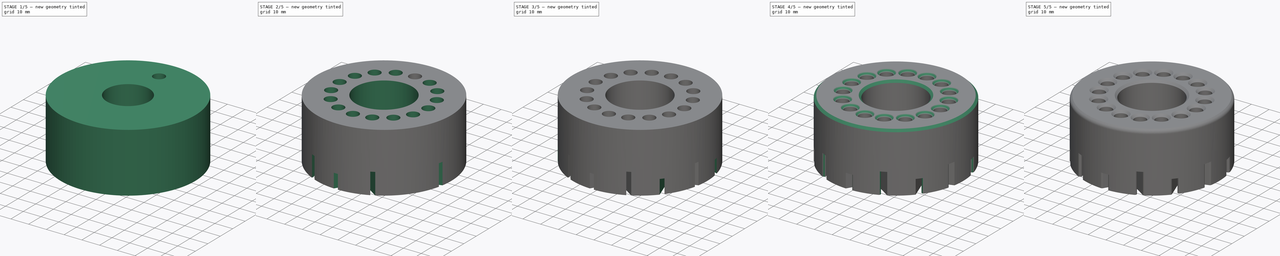
[diagram: build sequence overview — one tinted view per stage of 5, left to right]
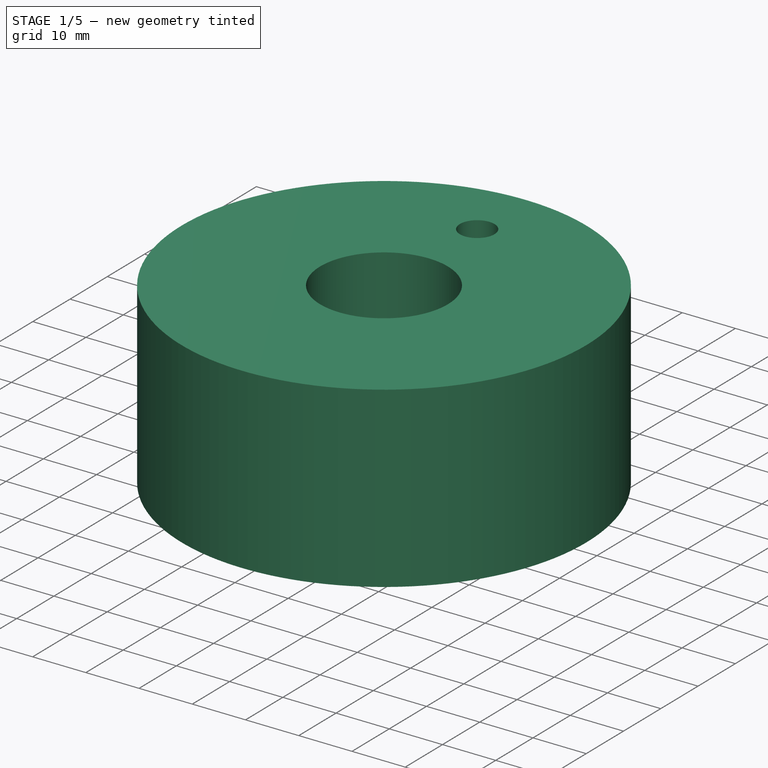
[diagram: stage 1 of 5 — iso view after this stage's code; geometry added in this stage tinted green]
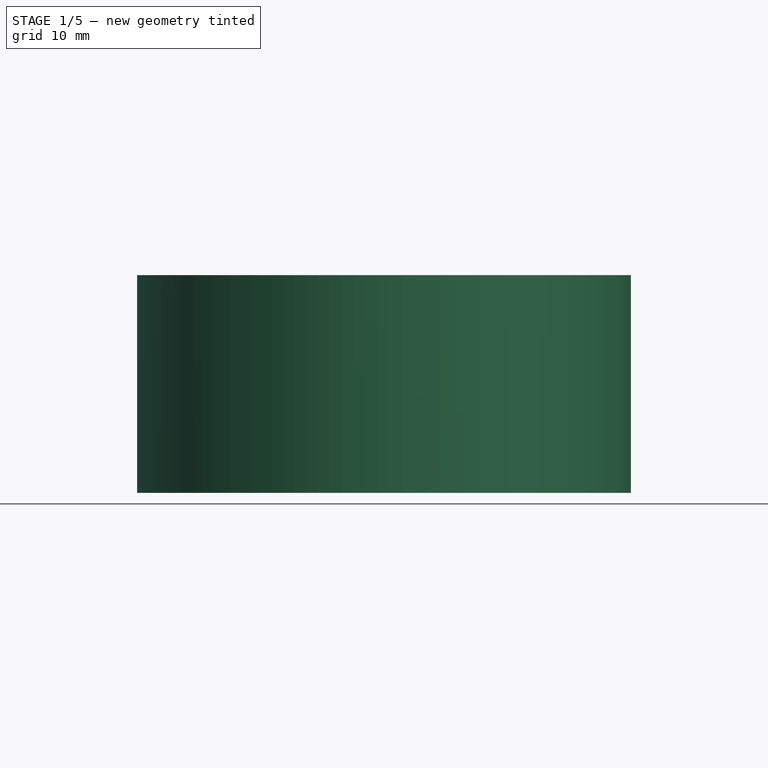
[diagram: stage 1 of 5 — front view after this stage's code; geometry added in this stage tinted green]
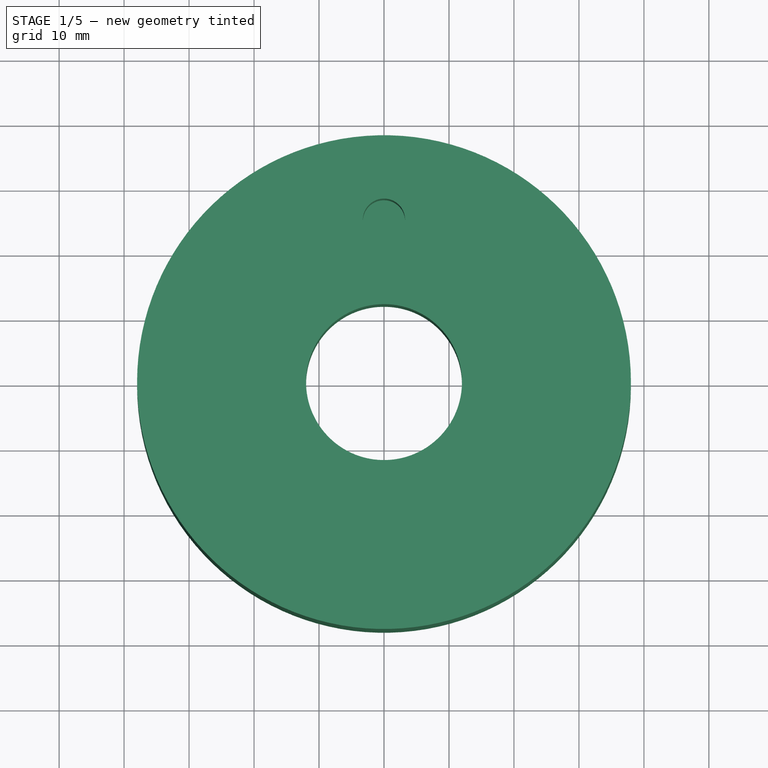
[diagram: stage 1 of 5 — top view after this stage's code; geometry added in this stage tinted green]
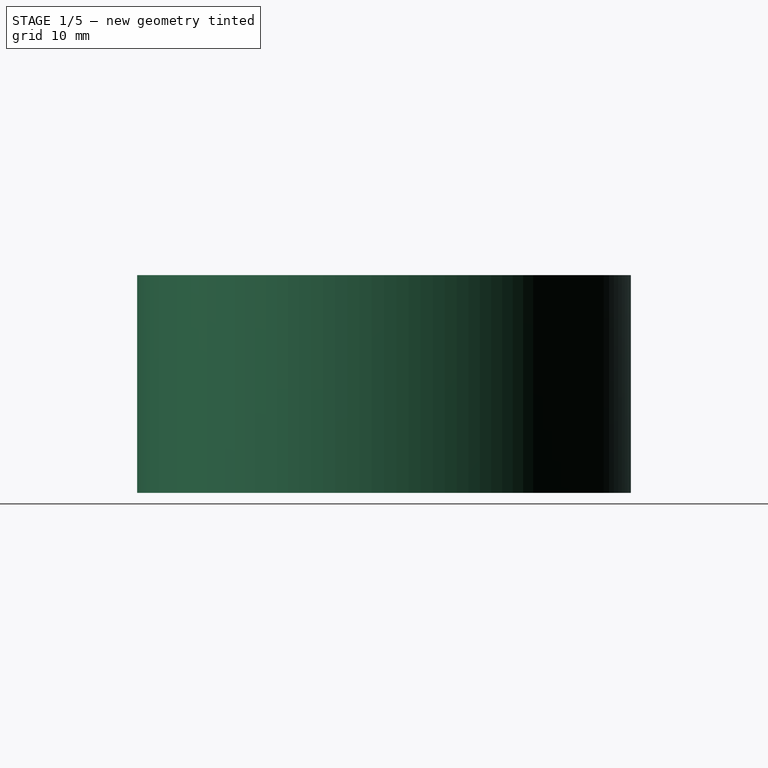
[diagram: stage 1 of 5 — right view after this stage's code; geometry added in this stage tinted green]
FCSTD DOCUMENT  (FreeCAD 0.16R)
Label: brake3
License: All rights reserved
LicenseURL: http://en.wikipedia.org/wiki/All_rights_reserved
objects: Sketcher::SketchObject×10, PartDesign::Pocket×9, PartDesign::PolarPattern×6, PartDesign::Fillet×5, PartDesign::Pad×1, PartDesign::Chamfer×1
note: 42 computed .brp shape members not serialized (recipe doc carries the construction recipe); baked Part::Feature solids carry a one-line shape summary decoded from their .brp

FEATURE [Sketcher::SketchObject] Sketch
  sketch-geometry (1):
    g0: Circle CenterX=0 CenterY=0 CenterZ=0 NormalX=0 NormalY=0 NormalZ=1 Radius=38
  constraints (2):
    c: Coincident(g0,g-1)
    c: Radius(g0) = 38
FEATURE [PartDesign::Pad] Pad
  Length = 33.5
  Length2 = 100
  Sketch = -> Sketch
  Type = 0
FEATURE [Sketcher::SketchObject] Sketch001
  Placement = pos=(0,0,0) rot=(1,0,0;3.14159rad)
  Support = -> Pad [Face2]
  sketch-geometry (1):
    g0: Circle CenterX=0 CenterY=0 CenterZ=0 NormalX=0 NormalY=0 NormalZ=1 Radius=12
  constraints (2):
    c: Coincident(g0,g-1)
    c: Radius(g0) = 12
FEATURE [PartDesign::Pocket] Pocket
  Length = 5
  Sketch = -> Sketch001
  Type = 1
FEATURE [Sketcher::SketchObject] Sketch002
  Placement = pos=(0,0,0) rot=(1,0,0;3.14159rad)
  Support = -> Pocket [Face2]
  sketch-geometry (1):
    g0: Circle CenterX=0 CenterY=0 CenterZ=0 NormalX=0 NormalY=0 NormalZ=1 Radius=27
  constraints (2):
    c: Coincident(g0,g-1)
    c: Radius(g0) = 27
FEATURE [PartDesign::Pocket] Pocket001
  Length = 10
  Sketch = -> Sketch002
  Type = 0
FEATURE [Sketcher::SketchObject] Sketch003
  Placement = pos=(0,0,33.5) rot=(0,0,1;0rad)
  Support = -> Pocket001 [Face3]
  sketch-geometry (1):
    g0: Circle CenterX=0 CenterY=25 CenterZ=0 NormalX=0 NormalY=0 NormalZ=1 Radius=3.25
  constraints (3):
    c: PointOnObject(g0,g-2)
    c: Distance(g-1,g0) = 25
    c: Radius(g0) = 3.25
FEATURE [PartDesign::Pocket] Pocket002
  Length = 15
  Sketch = -> Sketch003
  Type = 0
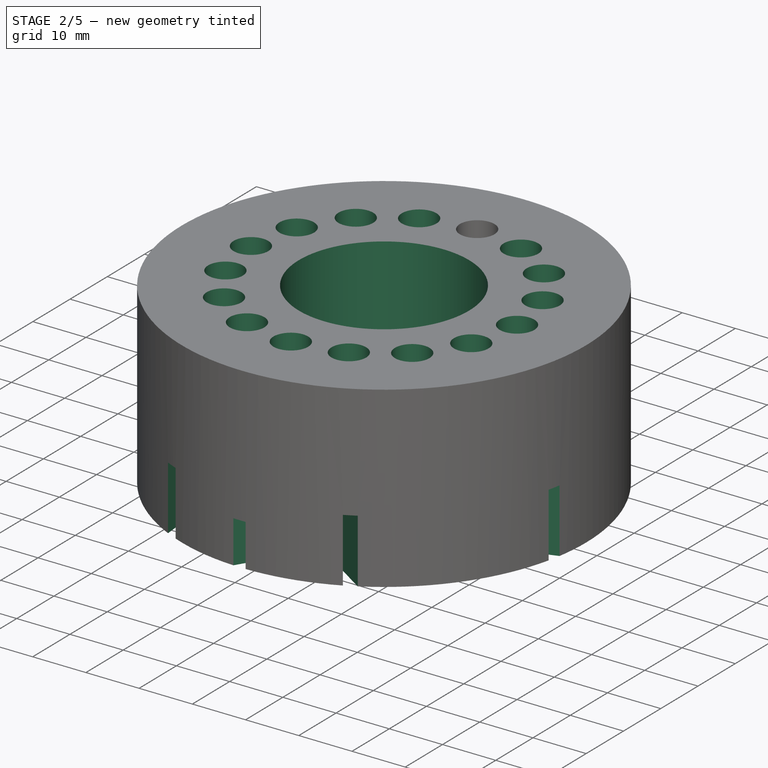
[diagram: stage 2 of 5 — iso view after this stage's code; geometry added in this stage tinted green]
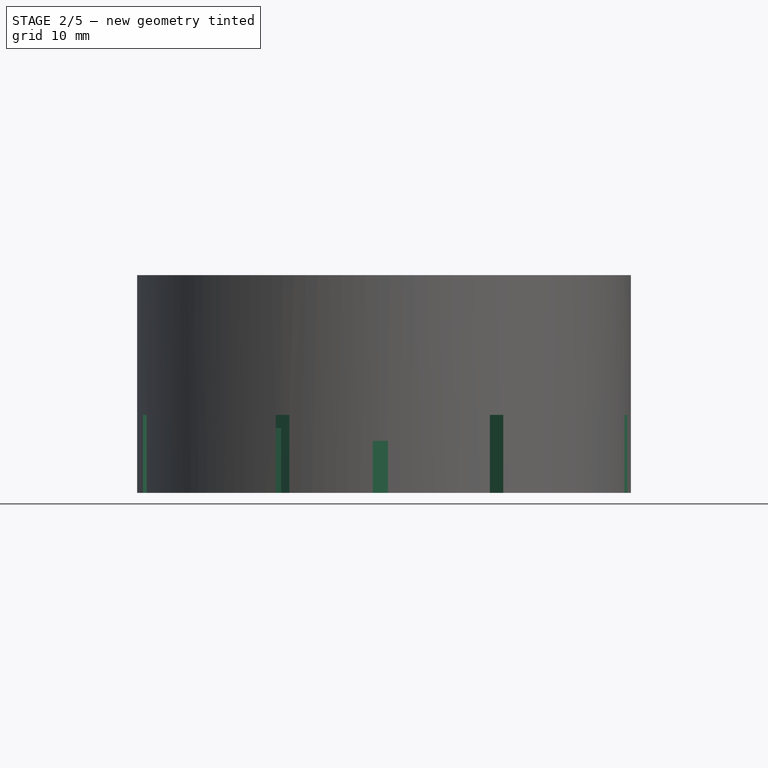
[diagram: stage 2 of 5 — front view after this stage's code; geometry added in this stage tinted green]
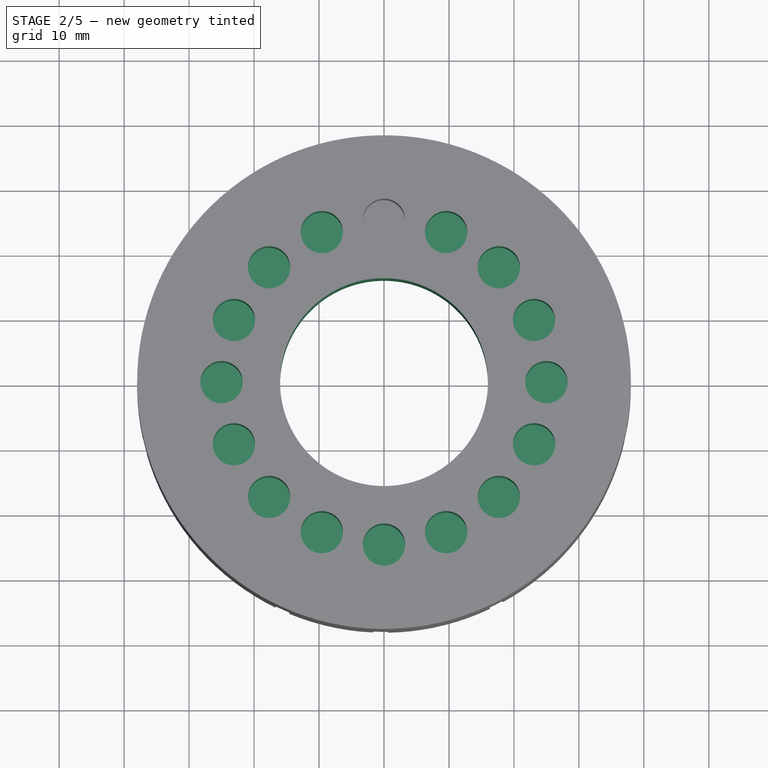
[diagram: stage 2 of 5 — top view after this stage's code; geometry added in this stage tinted green]
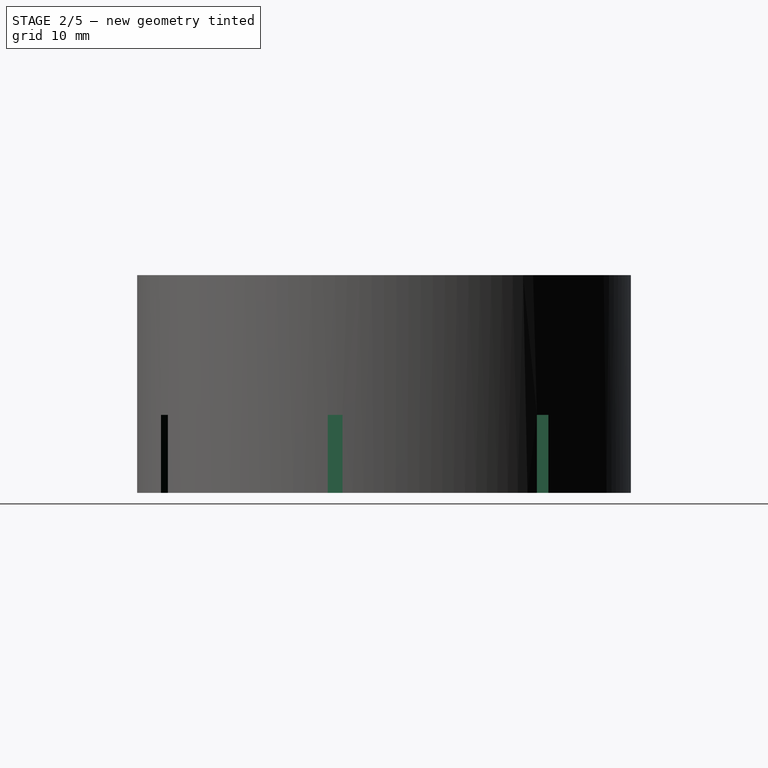
[diagram: stage 2 of 5 — right view after this stage's code; geometry added in this stage tinted green]
FEATURE [PartDesign::PolarPattern] PolarPattern
  Angle = 360
  Axis = -> Sketch003 [N_Axis]
  Occurrences = 16
  Originals = -> [Pocket002]
FEATURE [Sketcher::SketchObject] Sketch004
  Placement = pos=(0,0,33.5) rot=(0,0,1;0rad)
  Support = -> PolarPattern [Face3]
  sketch-geometry (1):
    g0: Circle CenterX=0 CenterY=0 CenterZ=0 NormalX=0 NormalY=0 NormalZ=1 Radius=16
  constraints (2):
    c: Coincident(g0,g-1)
    c: Radius(g0) = 16
FEATURE [PartDesign::Pocket] Pocket003
  Length = 24
  Sketch = -> Sketch004
  Type = 1
FEATURE [Sketcher::SketchObject] Sketch005
  Placement = pos=(0,0,0) rot=(1,0,0;3.14159rad)
  Support = -> Pocket003 [Face2]
  sketch-geometry (51):
    g0: Circle [constr] CenterX=0 CenterY=0 CenterZ=0 NormalX=0 NormalY=0 NormalZ=1 Radius=22.5
    g1: Circle [constr] CenterX=0 CenterY=0 CenterZ=0 NormalX=0 NormalY=0 NormalZ=1 Radius=196
    g2: GeomPoint [constr] X=0 Y=22.5 Z=0
    g3: LineSegment [constr] StartX=0 StartY=0 StartZ=0 EndX=-17.5842 EndY=14.0373 EndZ=0
    g4: LineSegment [constr] StartX=0 StartY=0 StartZ=0 EndX=0 EndY=22.5 EndZ=0
    g5: LineSegment [constr] StartX=0 StartY=0 StartZ=0 EndX=21.9321 EndY=5.02313 EndZ=0
    g6: LineSegment [constr] StartX=0 StartY=0 StartZ=0 EndX=17.6087 EndY=-14.0066 EndZ=0
    g7: LineSegment [constr] StartX=0 StartY=0 StartZ=0 EndX=0.0392699 EndY=-22.5 EndZ=0
    g8: LineSegment [constr] StartX=0 StartY=0 StartZ=0 EndX=-17.5597 EndY=-14.068 EndZ=0
    g9: LineSegment [constr] StartX=0 StartY=0 StartZ=0 EndX=-21.9233 EndY=-5.0614 EndZ=0
    g10: LineSegment [constr] StartX=0 StartY=0 StartZ=0 EndX=-21.9321 EndY=5.02313 EndZ=0
    g11: LineSegment [constr] StartX=0 StartY=0 StartZ=0 EndX=-9.75733 EndY=20.2742 EndZ=0
    g12: LineSegment [constr] StartX=0 StartY=0 StartZ=0 EndX=21.9409 EndY=-4.98484 EndZ=0
    g13: LineSegment [constr] StartX=0 StartY=0 StartZ=0 EndX=9.7927 EndY=-20.2572 EndZ=0
    g14: LineSegment [constr] StartX=0 StartY=0 StartZ=0 EndX=-9.72193 EndY=-20.2912 EndZ=0
    g15: LineSegment [constr] StartX=0 StartY=0 StartZ=0 EndX=9.75733 EndY=20.2742 EndZ=0
    g16: LineSegment [constr] StartX=0 StartY=0 StartZ=0 EndX=17.5842 EndY=14.0373 EndZ=0
    g17: LineSegment [constr] StartX=9.75733 StartY=20.2742 StartZ=0 EndX=-85.1953 EndY=176.516 EndZ=0
    g18: LineSegment [constr] StartX=21.9321 StartY=5.02313 StartZ=0 EndX=84.8871 EndY=176.664 EndZ=0
    g19: LineSegment [constr] StartX=17.6087 StartY=-14.0066 StartZ=0 EndX=191.048 EndY=43.7808 EndZ=0
    g20: LineSegment [constr] StartX=-9.75733 StartY=20.2742 StartZ=0 EndX=-191.124 EndY=43.4473 EndZ=0
    g21: LineSegment [constr] StartX=-21.9321 StartY=5.02313 StartZ=0 EndX=-153.132 EndY=-122.338 EndZ=0
    g22: LineSegment [constr] StartX=-17.5597 StartY=-14.068 StartZ=0 EndX=0.171042 EndY=-196 EndZ=0
    g23: LineSegment [constr] StartX=0.0392699 StartY=-22.5 StartZ=0 EndX=153.346 EndY=-122.07 EndZ=0
    g24: LineSegment [constr] StartX=17.5842 StartY=14.0373 StartZ=0 EndX=191.124 EndY=-43.4473 EndZ=0
    g25: LineSegment [constr] StartX=21.9409 StartY=-4.98484 StartZ=0 EndX=85.1953 EndY=-176.516 EndZ=0
    g26: LineSegment [constr] StartX=9.7927 StartY=-20.2572 StartZ=0 EndX=-84.8871 EndY=-176.664 EndZ=0
    g27: LineSegment [constr] StartX=-9.72193 StartY=-20.2912 StartZ=0 EndX=-191.048 EndY=-43.7808 EndZ=0
    g28: LineSegment [constr] StartX=-21.9233 StartY=-5.0614 StartZ=0 EndX=-153.346 EndY=122.07 EndZ=0
    g29: LineSegment [constr] StartX=-17.5842 StartY=14.0373 StartZ=0 EndX=-0.171042 EndY=196 EndZ=0
    g30: LineSegment [constr] StartX=0 StartY=22.5 StartZ=0 EndX=153.132 EndY=122.338 EndZ=0
    g31: LineSegment [constr] StartX=-85.1953 StartY=176.516 StartZ=0 EndX=-0.171042 EndY=196 EndZ=0
    g32: LineSegment [constr] StartX=-0.171042 StartY=196 StartZ=0 EndX=84.8871 EndY=176.664 EndZ=0
    g33: LineSegment [constr] StartX=84.8871 StartY=176.664 StartZ=0 EndX=153.132 EndY=122.338 EndZ=0
    g34: LineSegment [constr] StartX=153.132 StartY=122.338 StartZ=0 EndX=191.048 EndY=43.7808 EndZ=0
    g35: LineSegment [constr] StartX=191.048 StartY=43.7808 StartZ=0 EndX=191.124 EndY=-43.4473 EndZ=0
    g36: LineSegment [constr] StartX=191.124 StartY=-43.4473 StartZ=0 EndX=153.346 EndY=-122.07 EndZ=0
    g37: LineSegment [constr] StartX=153.346 StartY=-122.07 StartZ=0 EndX=85.1953 EndY=-176.516 EndZ=0
    g38: LineSegment [constr] StartX=85.1953 StartY=-176.516 StartZ=0 EndX=0.171042 EndY=-196 EndZ=0
    g39: LineSegment [constr] StartX=0.171042 StartY=-196 StartZ=0 EndX=-84.8871 EndY=-176.664 EndZ=0
    g40: LineSegment [constr] StartX=-84.8871 StartY=-176.664 StartZ=0 EndX=-153.132 EndY=-122.338 EndZ=0
    g41: LineSegment [constr] StartX=-153.132 StartY=-122.338 StartZ=0 EndX=-191.048 EndY=-43.7808 EndZ=0
    g42: LineSegment [constr] StartX=-191.048 StartY=-43.7808 StartZ=0 EndX=-191.124 EndY=43.4473 EndZ=0
    g43: LineSegment [constr] StartX=-191.124 StartY=43.4473 StartZ=0 EndX=-153.346 EndY=122.07 EndZ=0
    g44: LineSegment [constr] StartX=-153.346 StartY=122.07 StartZ=0 EndX=-85.1953 EndY=176.516 EndZ=0
    g45: LineSegment StartX=31.7281 StartY=41.992 StartZ=0 EndX=0.336726 EndY=21.5258 EndZ=0
    g46: LineSegment StartX=-0.75557 StartY=23.2012 StartZ=0 EndX=30.6358 EndY=43.6674 EndZ=0
    g47: LineSegment StartX=-0.974226 StartY=22.1633 StartZ=0 EndX=-0.701152 EndY=21.7444 EndZ=0
    g48: LineSegment StartX=30.6358 StartY=43.6674 StartZ=0 EndX=31.7281 EndY=41.992 EndZ=0
    g49: ArcOfCircle CenterX=-0.345959 CenterY=22.5729 CenterZ=0 NormalX=0 NormalY=0 NormalZ=1 Radius=0.75 StartAngle=2.14856 EndAngle=3.71935
    g50: ArcOfCircle CenterX=-0.0728851 CenterY=22.154 CenterZ=0 NormalX=0 NormalY=0 NormalZ=1 Radius=0.75 StartAngle=3.71935 EndAngle=5.29015
  constraints (133):
    c: Coincident(g0,g-1)
    c: Radius(g0) = 22.5
    c: Coincident(g1,g-1)
    c: Radius(g1) = 196
    c: Coincident(g3,g-1)
    c: Coincident(g4,g-1)
    c: Coincident(g5,g-1)
    c: Coincident(g6,g-1)
    c: Coincident(g7,g-1)
    c: Coincident(g9,g-1)
    c: Coincident(g10,g-1)
    c: Coincident(g12,g-1)
    c: Coincident(g13,g-1)
    c: Coincident(g14,g-1)
    c: Coincident(g15,g11)
    c: PointOnObject(g16,g5)
    c: Coincident(g8,g-1)
    c: Coincident(g11,g-1)
    c: Coincident(g16,g-1)
    c: Angle(g3,g10) = 0.44855
    c: Angle(g11,g3) = 0.44855
    c: Angle(g4,g11) = 0.44855
    c: Angle(g15,g4) = 0.44855
    c: Angle(g16,g15) = 0.44855
    c: Angle(g5,g16) = 0.44855
    c: Angle(g12,g5) = 0.44855
    c: Angle(g6,g12) = 0.44855
    c: Angle(g13,g6) = 0.44855
    c: Angle(g7,g13) = 0.44855
    c: Angle(g14,g7) = 0.44855
    c: Angle(g8,g14) = 0.44855
    c: Angle(g9,g8) = 0.44855
    c: PointOnObject(g4,g-2)
    c: PointOnObject(g4,g0)
    c: PointOnObject(g5,g0)
    c: PointOnObject(g16,g0)
    c: PointOnObject(g12,g0)
    c: PointOnObject(g6,g0)
    c: PointOnObject(g13,g0)
    c: PointOnObject(g7,g0)
    c: PointOnObject(g14,g0)
    c: PointOnObject(g8,g0)
    c: PointOnObject(g3,g0)
    c: PointOnObject(g11,g0)
    c: PointOnObject(g15,g0)
    c: PointOnObject(g9,g0)
    c: Coincident(g17,g15)
    c: PointOnObject(g17,g1)
    c: Coincident(g18,g5)
    c: PointOnObject(g18,g1)
    c: Coincident(g19,g6)
    c: PointOnObject(g19,g1)
    c: Coincident(g20,g11)
    c: PointOnObject(g20,g1)
    c: PointOnObject(g21,g1)
    c: Coincident(g22,g8)
    c: PointOnObject(g22,g1)
    c: Coincident(g23,g7)
    c: PointOnObject(g23,g1)
    c: Coincident(g24,g16)
    c: PointOnObject(g24,g1)
    c: Coincident(g25,g12)
    c: PointOnObject(g25,g1)
    c: Coincident(g26,g13)
    c: PointOnObject(g26,g1)
    c: Coincident(g27,g14)
    c: PointOnObject(g27,g1)
    c: Coincident(g28,g9)
    c: PointOnObject(g28,g1)
    c: Coincident(g29,g3)
    c: PointOnObject(g29,g1)
    c: Coincident(g31,g17)
    c: Coincident(g31,g29)
    c: Coincident(g29,g32)
    c: Coincident(g32,g18)
    c: Coincident(g32,g33)
    c: Coincident(g33,g30)
    c: Coincident(g33,g34)
    c: Coincident(g34,g19)
    c: Coincident(g34,g35)
    c: Coincident(g35,g24)
    c: Coincident(g35,g36)
    c: Coincident(g36,g23)
    c: Coincident(g36,g37)
    c: Coincident(g37,g25)
    c: Coincident(g37,g38)
    c: Coincident(g38,g22)
    c: Coincident(g38,g39)
    c: Coincident(g39,g26)
    c: Coincident(g39,g40)
    c: Coincident(g40,g21)
    c: Coincident(g40,g41)
    c: Coincident(g41,g27)
    c: Coincident(g41,g42)
    c: Coincident(g42,g20)
    c: Coincident(g42,g43)
    c: Coincident(g43,g28)
    c: Coincident(g43,g44)
    c: Coincident(g44,g17)
    c: PointOnObject(g30,g1)
    c: Equal(g35,g34)
    c: Equal(g34,g33)
    c: Equal(g33,g32)
    c: Equal(g32,g31)
    c: Equal(g31,g44)
    c: Equal(g44,g43)
    c: Equal(g43,g42)
    c: Equal(g42,g41)
    c: Equal(g41,g40)
    c: Equal(g40,g39)
    c: Equal(g39,g38)
    c: Equal(g38,g37)
    c: Equal(g37,g36)
    c: Equal(g24,g19)
    c: Coincident(g30,g2)
    c: Coincident(g2,g4)
    c: Coincident(g21,g10)
    c: PointOnObject(g10,g0)
    c: Coincident(g48,g46)
    c: Coincident(g48,g45)
    c: Parallel(g45,g46)
    c: Parallel(g30,g45)
    c: Symmetric(g45,g46,g30)
    c: Distance(g48) = 2
    c: Perpendicular(g45,g47)
    c: Distance(g2,g47) = 1
    c: Tangent(g46,g49) = 1.5708
    c: Tangent(g47,g49) = -1.5708
    c: Tangent(g45,g50) = 1.5708
    c: Tangent(g47,g50) = -1.5708
    c: Distance(g47) = 0.5
    c: Symmetric(g45,g46,g30)
    c: Distance(g45) = 37.4738
FEATURE [PartDesign::Pocket] Pocket004
  Length = 12
  Sketch = -> Sketch005
  Type = 0
FEATURE [PartDesign::PolarPattern] PolarPattern001
  Angle = 360
  Axis = -> Sketch005 [N_Axis]
  Occurrences = 7
  Originals = -> [Pocket004]
FEATURE [Sketcher::SketchObject] Sketch006
  Placement = pos=(0,0,0) rot=(1,0,0;3.14159rad)
  Support = -> PolarPattern001 [Face19]
  sketch-geometry (49):
    g0: Circle [constr] CenterX=0 CenterY=0 CenterZ=0 NormalX=0 NormalY=0 NormalZ=1 Radius=23
    g1: Circle [constr] CenterX=0 CenterY=0 CenterZ=0 NormalX=0 NormalY=0 NormalZ=1 Radius=196
    g2: GeomPoint [constr] X=0 Y=23 Z=0
    g3: LineSegment [constr] StartX=0 StartY=0 StartZ=0 EndX=-17.975 EndY=14.3492 EndZ=0
    g4: LineSegment [constr] StartX=0 StartY=0 StartZ=0 EndX=0 EndY=23 EndZ=0
    g5: LineSegment [constr] StartX=0 StartY=0 StartZ=0 EndX=22.4195 EndY=5.13475 EndZ=0
    g6: LineSegment [constr] StartX=0 StartY=0 StartZ=0 EndX=18 EndY=-14.3178 EndZ=0
    g7: LineSegment [constr] StartX=0 StartY=0 StartZ=0 EndX=0.0401426 EndY=-23 EndZ=0
    g8: LineSegment [constr] StartX=0 StartY=0 StartZ=0 EndX=-17.9499 EndY=-14.3806 EndZ=0
    g9: LineSegment [constr] StartX=0 StartY=0 StartZ=0 EndX=-22.4105 EndY=-5.17387 EndZ=0
    g10: LineSegment [constr] StartX=0 StartY=0 StartZ=0 EndX=-22.4195 EndY=5.13475 EndZ=0
    g11: LineSegment [constr] StartX=0 StartY=0 StartZ=0 EndX=-9.97416 EndY=20.7248 EndZ=0
    g12: LineSegment [constr] StartX=0 StartY=0 StartZ=0 EndX=22.4284 EndY=-5.09562 EndZ=0
    g13: LineSegment [constr] StartX=0 StartY=0 StartZ=0 EndX=10.0103 EndY=-20.7073 EndZ=0
    g14: LineSegment [constr] StartX=0 StartY=0 StartZ=0 EndX=-9.93797 EndY=-20.7421 EndZ=0
    g15: LineSegment [constr] StartX=0 StartY=0 StartZ=0 EndX=9.97416 EndY=20.7248 EndZ=0
    g16: LineSegment [constr] StartX=0 StartY=0 StartZ=0 EndX=17.975 EndY=14.3492 EndZ=0
    g17: LineSegment [constr] StartX=9.97416 StartY=20.7248 StartZ=0 EndX=-85.1953 EndY=176.516 EndZ=0
    g18: LineSegment [constr] StartX=22.4195 StartY=5.13475 StartZ=0 EndX=84.8871 EndY=176.664 EndZ=0
    g19: LineSegment [constr] StartX=18 StartY=-14.3178 StartZ=0 EndX=191.048 EndY=43.7808 EndZ=0
    g20: LineSegment [constr] StartX=-9.97416 StartY=20.7248 StartZ=0 EndX=-191.124 EndY=43.4473 EndZ=0
    g21: LineSegment [constr] StartX=-22.4195 StartY=5.13475 StartZ=0 EndX=-153.132 EndY=-122.338 EndZ=0
    g22: LineSegment [constr] StartX=-17.9499 StartY=-14.3806 StartZ=0 EndX=0.171042 EndY=-196 EndZ=0
    g23: LineSegment [constr] StartX=0.0401426 StartY=-23 StartZ=0 EndX=153.346 EndY=-122.07 EndZ=0
    g24: LineSegment [constr] StartX=17.975 StartY=14.3492 StartZ=0 EndX=191.124 EndY=-43.4473 EndZ=0
    g25: LineSegment [constr] StartX=22.4284 StartY=-5.09562 StartZ=0 EndX=85.1953 EndY=-176.516 EndZ=0
    g26: LineSegment [constr] StartX=10.0103 StartY=-20.7073 StartZ=0 EndX=-84.8871 EndY=-176.664 EndZ=0
    g27: LineSegment [constr] StartX=-9.93797 StartY=-20.7421 StartZ=0 EndX=-191.048 EndY=-43.7808 EndZ=0
    g28: LineSegment [constr] StartX=-22.4105 StartY=-5.17387 StartZ=0 EndX=-153.346 EndY=122.07 EndZ=0
    g29: LineSegment [constr] StartX=-17.975 StartY=14.3492 StartZ=0 EndX=-0.171042 EndY=196 EndZ=0
    g30: LineSegment [constr] StartX=0 StartY=23 StartZ=0 EndX=153.132 EndY=122.338 EndZ=0
    g31: LineSegment [constr] StartX=-85.1953 StartY=176.516 StartZ=0 EndX=-0.171042 EndY=196 EndZ=0
    g32: LineSegment [constr] StartX=-0.171042 StartY=196 StartZ=0 EndX=84.8871 EndY=176.664 EndZ=0
    g33: LineSegment [constr] StartX=84.8871 StartY=176.664 StartZ=0 EndX=153.132 EndY=122.338 EndZ=0
    g34: LineSegment [constr] StartX=153.132 StartY=122.338 StartZ=0 EndX=191.048 EndY=43.7808 EndZ=0
    g35: LineSegment [constr] StartX=191.048 StartY=43.7808 StartZ=0 EndX=191.124 EndY=-43.4473 EndZ=0
    g36: LineSegment [constr] StartX=191.124 StartY=-43.4473 StartZ=0 EndX=153.346 EndY=-122.07 EndZ=0
    g37: LineSegment [constr] StartX=153.346 StartY=-122.07 StartZ=0 EndX=85.1953 EndY=-176.516 EndZ=0
    g38: LineSegment [constr] StartX=85.1953 StartY=-176.516 StartZ=0 EndX=0.171042 EndY=-196 EndZ=0
    g39: LineSegment [constr] StartX=0.171042 StartY=-196 StartZ=0 EndX=-84.8871 EndY=-176.664 EndZ=0
    g40: LineSegment [constr] StartX=-84.8871 StartY=-176.664 StartZ=0 EndX=-153.132 EndY=-122.338 EndZ=0
    g41: LineSegment [constr] StartX=-153.132 StartY=-122.338 StartZ=0 EndX=-191.048 EndY=-43.7808 EndZ=0
    g42: LineSegment [constr] StartX=-191.048 StartY=-43.7808 StartZ=0 EndX=-191.124 EndY=43.4473 EndZ=0
    g43: LineSegment [constr] StartX=-191.124 StartY=43.4473 StartZ=0 EndX=-153.346 EndY=122.07 EndZ=0
    g44: LineSegment [constr] StartX=-153.346 StartY=122.07 StartZ=0 EndX=-85.1953 EndY=176.516 EndZ=0
    g45: LineSegment StartX=11.8701 StartY=19.5393 StartZ=0 EndX=-8.9821 EndY=53.6741 EndZ=0
    g46: LineSegment StartX=-8.9821 StartY=53.6741 StartZ=0 EndX=-10.6888 EndY=52.6315 EndZ=0
    g47: LineSegment StartX=-10.6888 StartY=52.6315 StartZ=0 EndX=10.1634 EndY=18.4967 EndZ=0
    g48: LineSegment StartX=10.1634 StartY=18.4967 StartZ=0 EndX=11.8701 EndY=19.5393 EndZ=0
  constraints (130):
    c: Coincident(g0,g-1)
    c: Radius(g0) = 23
    c: Coincident(g1,g-1)
    c: Radius(g1) = 196
    c: Coincident(g3,g-1)
    c: Coincident(g4,g-1)
    c: Coincident(g5,g-1)
    c: Coincident(g6,g-1)
    c: Coincident(g7,g-1)
    c: Coincident(g9,g-1)
    c: Coincident(g10,g-1)
    c: Coincident(g12,g-1)
    c: Coincident(g13,g-1)
    c: Coincident(g14,g-1)
    c: Coincident(g15,g11)
    c: PointOnObject(g16,g5)
    c: Coincident(g8,g-1)
    c: Coincident(g11,g-1)
    c: Coincident(g16,g-1)
    c: Angle(g3,g10) = 0.44855
    c: Angle(g11,g3) = 0.44855
    c: Angle(g4,g11) = 0.44855
    c: Angle(g15,g4) = 0.44855
    c: Angle(g16,g15) = 0.44855
    c: Angle(g5,g16) = 0.44855
    c: Angle(g12,g5) = 0.44855
    c: Angle(g6,g12) = 0.44855
    c: Angle(g13,g6) = 0.44855
    c: Angle(g7,g13) = 0.44855
    c: Angle(g14,g7) = 0.44855
    c: Angle(g8,g14) = 0.44855
    c: Angle(g9,g8) = 0.44855
    c: PointOnObject(g4,g-2)
    c: PointOnObject(g4,g0)
    c: PointOnObject(g5,g0)
    c: PointOnObject(g16,g0)
    c: PointOnObject(g12,g0)
    c: PointOnObject(g6,g0)
    c: PointOnObject(g13,g0)
    c: PointOnObject(g7,g0)
    c: PointOnObject(g14,g0)
    c: PointOnObject(g8,g0)
    c: PointOnObject(g3,g0)
    c: PointOnObject(g11,g0)
    c: PointOnObject(g15,g0)
    c: PointOnObject(g9,g0)
    c: Coincident(g17,g15)
    c: PointOnObject(g17,g1)
    c: Coincident(g18,g5)
    c: PointOnObject(g18,g1)
    c: Coincident(g19,g6)
    c: PointOnObject(g19,g1)
    c: Coincident(g20,g11)
    c: PointOnObject(g20,g1)
    c: PointOnObject(g21,g1)
    c: Coincident(g22,g8)
    c: PointOnObject(g22,g1)
    c: Coincident(g23,g7)
    c: PointOnObject(g23,g1)
    c: Coincident(g24,g16)
    c: PointOnObject(g24,g1)
    c: Coincident(g25,g12)
    c: PointOnObject(g25,g1)
    c: Coincident(g26,g13)
    c: PointOnObject(g26,g1)
    c: Coincident(g27,g14)
    c: PointOnObject(g27,g1)
    c: Coincident(g28,g9)
    c: PointOnObject(g28,g1)
    c: Coincident(g29,g3)
    c: PointOnObject(g29,g1)
    c: Coincident(g31,g17)
    c: Coincident(g31,g29)
    c: Coincident(g29,g32)
    c: Coincident(g32,g18)
    c: Coincident(g32,g33)
    c: Coincident(g33,g30)
    c: Coincident(g33,g34)
    c: Coincident(g34,g19)
    c: Coincident(g34,g35)
    c: Coincident(g35,g24)
    c: Coincident(g35,g36)
    c: Coincident(g36,g23)
    c: Coincident(g36,g37)
    c: Coincident(g37,g25)
    c: Coincident(g37,g38)
    c: Coincident(g38,g22)
    c: Coincident(g38,g39)
    c: Coincident(g39,g26)
    c: Coincident(g39,g40)
    c: Coincident(g40,g21)
    c: Coincident(g40,g41)
    c: Coincident(g41,g27)
    c: Coincident(g41,g42)
    c: Coincident(g42,g20)
    c: Coincident(g42,g43)
    c: Coincident(g43,g28)
    c: Coincident(g43,g44)
    c: Coincident(g44,g17)
    c: PointOnObject(g30,g1)
    c: Equal(g35,g34)
    c: Equal(g34,g33)
    c: Equal(g33,g32)
    c: Equal(g32,g31)
    c: Equal(g31,g44)
    c: Equal(g44,g43)
    c: Equal(g43,g42)
    c: Equal(g42,g41)
    c: Equal(g41,g40)
    c: Equal(g40,g39)
    c: Equal(g39,g38)
    c: Equal(g38,g37)
    c: Equal(g37,g36)
    c: Equal(g24,g19)
    c: Coincident(g30,g2)
    c: Coincident(g2,g4)
    c: Coincident(g21,g10)
    c: PointOnObject(g10,g0)
    c: Coincident(g45,g46)
    c: Coincident(g46,g47)
    c: Coincident(g47,g48)
    c: Coincident(g48,g45)
    c: Perpendicular(g45,g46)
    c: Parallel(g17,g45)
    c: Parallel(g47,g45)
    c: Symmetric(g45,g46,g17)
    c: Distance(g46) = 2
    c: Distance(g47) = 40
    c: Perpendicular(g47,g48)
    c: Distance(g15,g48) = 2
FEATURE [PartDesign::Pocket] Pocket005
  Length = 8
  Sketch = -> Sketch006
  Type = 0
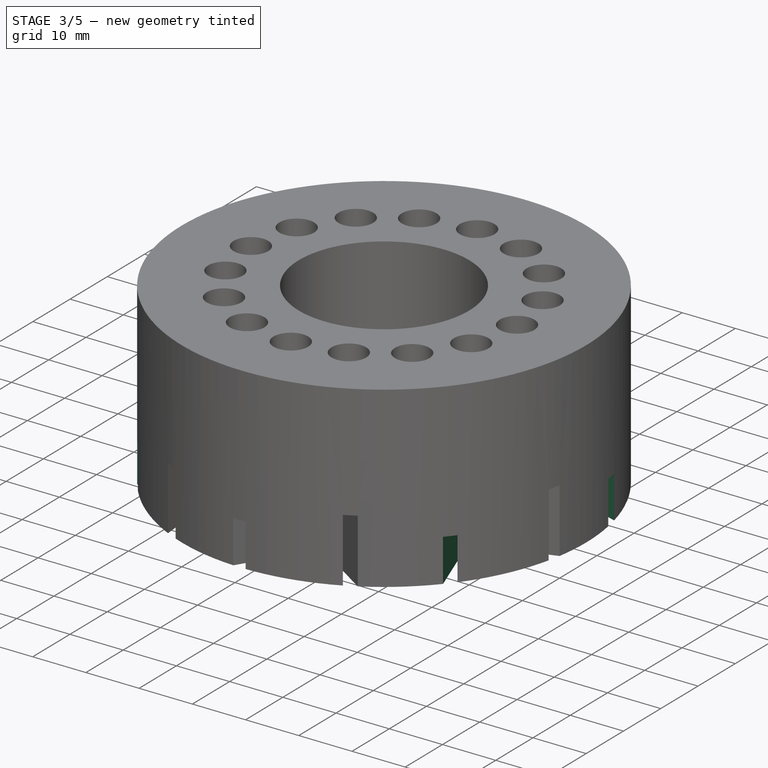
[diagram: stage 3 of 5 — iso view after this stage's code; geometry added in this stage tinted green]
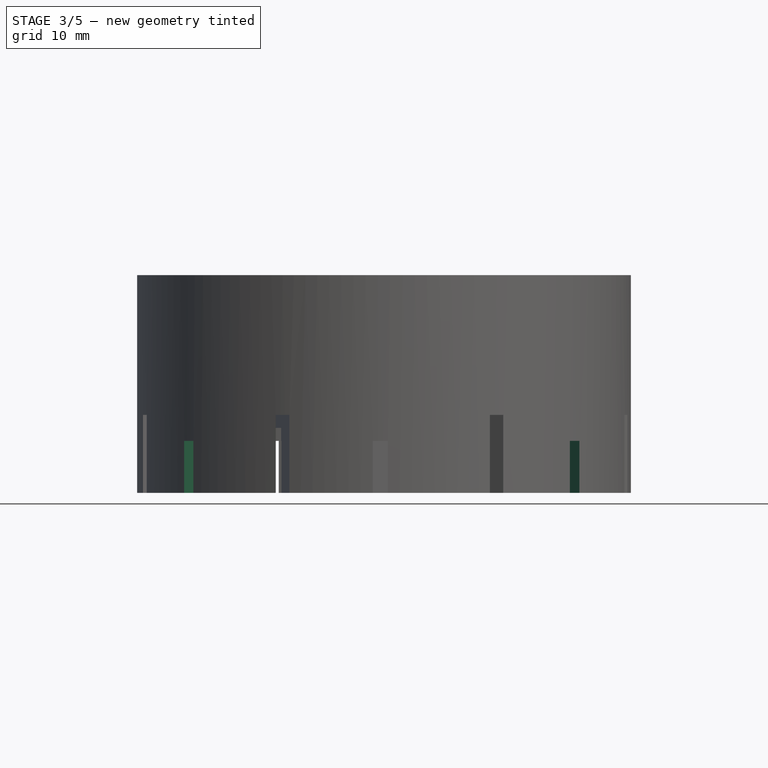
[diagram: stage 3 of 5 — front view after this stage's code; geometry added in this stage tinted green]
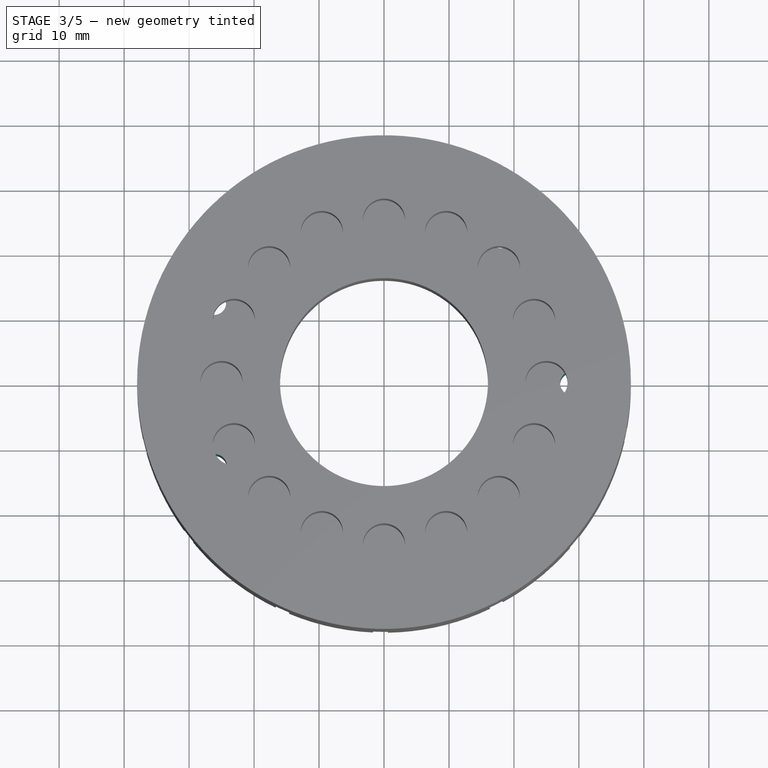
[diagram: stage 3 of 5 — top view after this stage's code; geometry added in this stage tinted green]
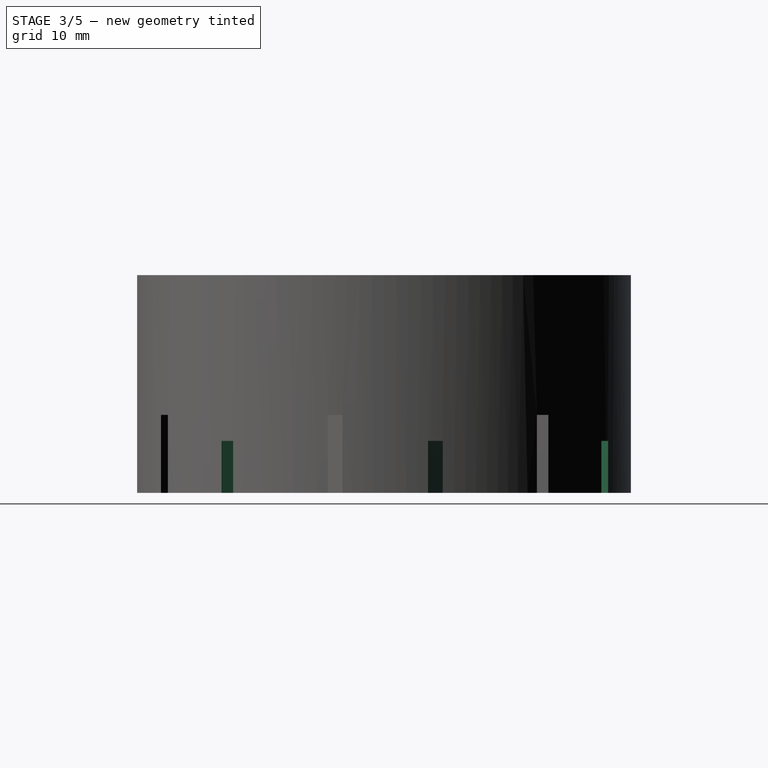
[diagram: stage 3 of 5 — right view after this stage's code; geometry added in this stage tinted green]
FEATURE [PartDesign::PolarPattern] PolarPattern002
  Angle = 360
  Axis = -> Sketch006 [N_Axis]
  Occurrences = 7
  Originals = -> [Pocket005]
FEATURE [Sketcher::SketchObject] Sketch007
  Placement = pos=(0,0,0) rot=(1,0,0;3.14159rad)
  Support = -> PolarPattern002 [Face47]
  sketch-geometry (1):
    g0: Circle CenterX=-6.32619 CenterY=28.2563 CenterZ=0 NormalX=0 NormalY=0 NormalZ=1 Radius=1.85
  constraints (1):
    c: Radius(g0) = 1.85
FEATURE [PartDesign::Pocket] Pocket006
  Length = 20
  Sketch = -> Sketch007
  Type = 0
FEATURE [PartDesign::PolarPattern] PolarPattern003
  Angle = 360
  Axis = -> Sketch007 [N_Axis]
  Occurrences = 7
  Originals = -> [Pocket006]
FEATURE [Sketcher::SketchObject] Sketch008
  ExternalGeometry = -> [PolarPattern003]
  Placement = pos=(0,0,0) rot=(1,0,0;3.14159rad)
  Support = -> PolarPattern003 [Face43]
  sketch-geometry (1):
    g0: Circle CenterX=-6.32004 CenterY=28.2111 CenterZ=0 NormalX=0 NormalY=0 NormalZ=1 Radius=4
  constraints (1):
    c: Radius(g0) = 4
FEATURE [PartDesign::Pocket] Pocket007
  Length = 10
  Sketch = -> Sketch008
  Type = 0
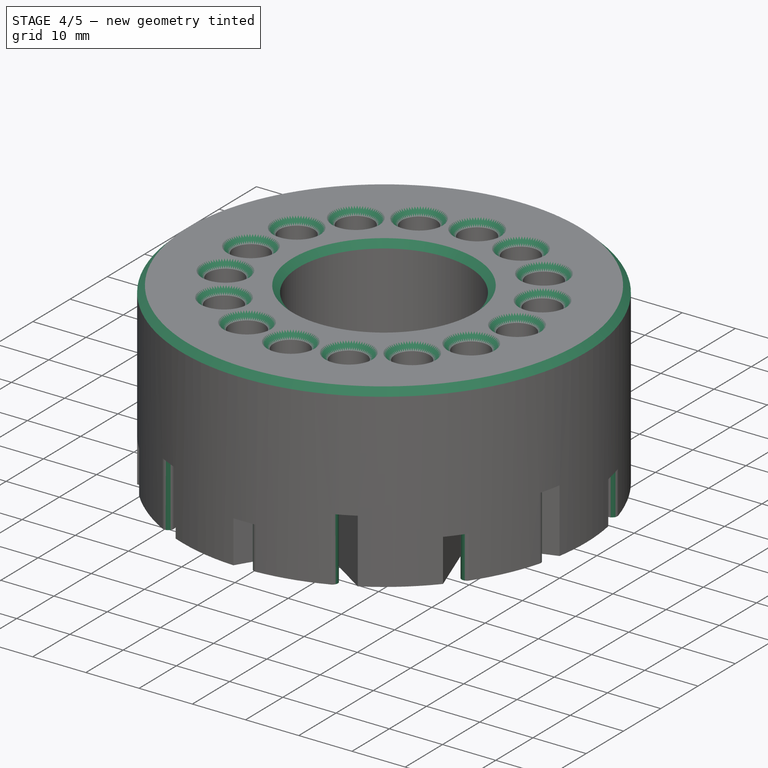
[diagram: stage 4 of 5 — iso view after this stage's code; geometry added in this stage tinted green]
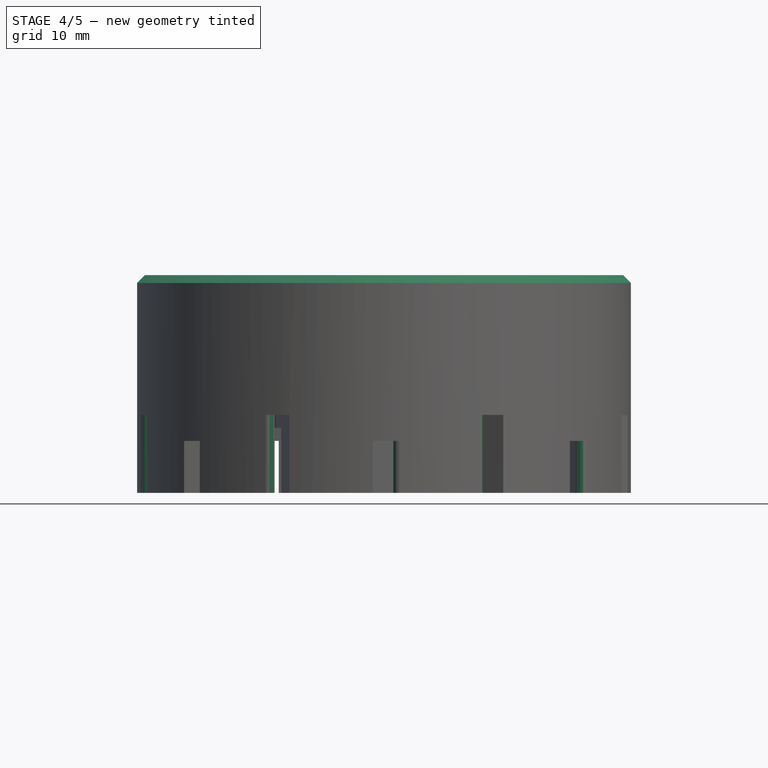
[diagram: stage 4 of 5 — front view after this stage's code; geometry added in this stage tinted green]
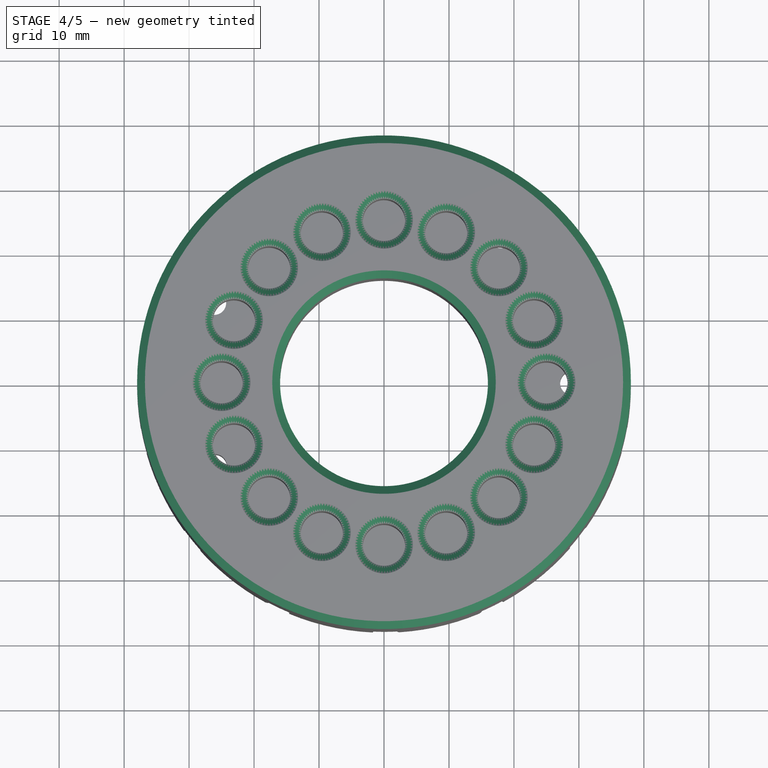
[diagram: stage 4 of 5 — top view after this stage's code; geometry added in this stage tinted green]
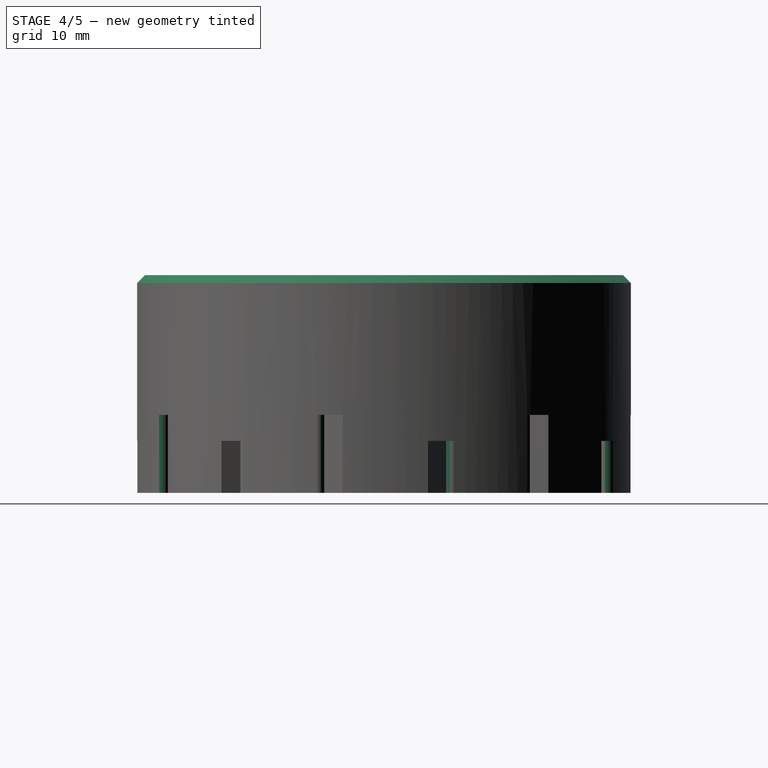
[diagram: stage 4 of 5 — right view after this stage's code; geometry added in this stage tinted green]
FEATURE [PartDesign::PolarPattern] PolarPattern004
  Angle = 360
  Axis = -> Sketch008 [N_Axis]
  Occurrences = 7
  Originals = -> [Pocket007]
FEATURE [PartDesign::Chamfer] Chamfer
  Base = -> PolarPattern004 [Edge2,Edge60,Edge61,Edge62,Edge63,Edge64,Edge65,Edge66,Edge67,Edge68,Edge69,Edge70,Edge71,Edge72,Edge73,Edge74,Edge75,Edge76]
  Size = 1.2
FEATURE [PartDesign::Fillet] Fillet
  Base = -> Chamfer [Edge15,Edge27,Edge31,Edge43,Edge47,Edge59,Edge56,Edge44,Edge40,Edge28,Edge24,Edge12,Edge8,Edge11]
  Radius = 1
FEATURE [Sketcher::SketchObject] Sketch009
  Placement = pos=(0,0,10) rot=(1,0,0;3.14159rad)
  Support = -> Fillet [Face67]
  sketch-geometry (46):
    g0: Circle [constr] CenterX=0 CenterY=0 CenterZ=0 NormalX=0 NormalY=0 NormalZ=1 Radius=23
    g1: Circle [constr] CenterX=0 CenterY=0 CenterZ=0 NormalX=0 NormalY=0 NormalZ=1 Radius=196
    g2: GeomPoint [constr] X=0 Y=23 Z=0
    g3: LineSegment [constr] StartX=0 StartY=0 StartZ=0 EndX=-17.975 EndY=14.3492 EndZ=0
    g4: LineSegment [constr] StartX=0 StartY=0 StartZ=0 EndX=0 EndY=23 EndZ=0
    g5: LineSegment [constr] StartX=0 StartY=0 StartZ=0 EndX=22.4195 EndY=5.13475 EndZ=0
    g6: LineSegment [constr] StartX=0 StartY=0 StartZ=0 EndX=18 EndY=-14.3178 EndZ=0
    g7: LineSegment [constr] StartX=0 StartY=0 StartZ=0 EndX=0.0401426 EndY=-23 EndZ=0
    g8: LineSegment [constr] StartX=0 StartY=0 StartZ=0 EndX=-17.9499 EndY=-14.3806 EndZ=0
    g9: LineSegment [constr] StartX=0 StartY=0 StartZ=0 EndX=-22.4105 EndY=-5.17387 EndZ=0
    g10: LineSegment [constr] StartX=0 StartY=0 StartZ=0 EndX=-22.4195 EndY=5.13475 EndZ=0
    g11: LineSegment [constr] StartX=0 StartY=0 StartZ=0 EndX=-9.97416 EndY=20.7248 EndZ=0
    g12: LineSegment [constr] StartX=0 StartY=0 StartZ=0 EndX=22.4284 EndY=-5.09562 EndZ=0
    g13: LineSegment [constr] StartX=0 StartY=0 StartZ=0 EndX=10.0103 EndY=-20.7073 EndZ=0
    g14: LineSegment [constr] StartX=0 StartY=0 StartZ=0 EndX=-9.93797 EndY=-20.7421 EndZ=0
    g15: LineSegment [constr] StartX=0 StartY=0 StartZ=0 EndX=9.97416 EndY=20.7248 EndZ=0
    g16: LineSegment [constr] StartX=0 StartY=0 StartZ=0 EndX=17.975 EndY=14.3492 EndZ=0
    g17: LineSegment [constr] StartX=9.97416 StartY=20.7248 StartZ=0 EndX=-85.1953 EndY=176.516 EndZ=0
    g18: LineSegment [constr] StartX=22.4195 StartY=5.13475 StartZ=0 EndX=84.8871 EndY=176.664 EndZ=0
    g19: LineSegment [constr] StartX=18 StartY=-14.3178 StartZ=0 EndX=191.048 EndY=43.7808 EndZ=0
    g20: LineSegment [constr] StartX=-9.97416 StartY=20.7248 StartZ=0 EndX=-191.124 EndY=43.4473 EndZ=0
    g21: LineSegment [constr] StartX=-22.4195 StartY=5.13475 StartZ=0 EndX=-153.132 EndY=-122.338 EndZ=0
    g22: LineSegment [constr] StartX=-17.9499 StartY=-14.3806 StartZ=0 EndX=0.171042 EndY=-196 EndZ=0
    g23: LineSegment [constr] StartX=0.0401426 StartY=-23 StartZ=0 EndX=153.346 EndY=-122.07 EndZ=0
    g24: LineSegment [constr] StartX=17.975 StartY=14.3492 StartZ=0 EndX=191.124 EndY=-43.4473 EndZ=0
    g25: LineSegment [constr] StartX=22.4284 StartY=-5.09562 StartZ=0 EndX=85.1953 EndY=-176.516 EndZ=0
    g26: LineSegment [constr] StartX=10.0103 StartY=-20.7073 StartZ=0 EndX=-84.8871 EndY=-176.664 EndZ=0
    g27: LineSegment [constr] StartX=-9.93797 StartY=-20.7421 StartZ=0 EndX=-191.048 EndY=-43.7808 EndZ=0
    g28: LineSegment [constr] StartX=-22.4105 StartY=-5.17387 StartZ=0 EndX=-153.346 EndY=122.07 EndZ=0
    g29: LineSegment [constr] StartX=-17.975 StartY=14.3492 StartZ=0 EndX=-0.171042 EndY=196 EndZ=0
    g30: LineSegment [constr] StartX=0 StartY=23 StartZ=0 EndX=153.132 EndY=122.338 EndZ=0
    g31: LineSegment [constr] StartX=-85.1953 StartY=176.516 StartZ=0 EndX=-0.171042 EndY=196 EndZ=0
    g32: LineSegment [constr] StartX=-0.171042 StartY=196 StartZ=0 EndX=84.8871 EndY=176.664 EndZ=0
    g33: LineSegment [constr] StartX=84.8871 StartY=176.664 StartZ=0 EndX=153.132 EndY=122.338 EndZ=0
    g34: LineSegment [constr] StartX=153.132 StartY=122.338 StartZ=0 EndX=191.048 EndY=43.7808 EndZ=0
    g35: LineSegment [constr] StartX=191.048 StartY=43.7808 StartZ=0 EndX=191.124 EndY=-43.4473 EndZ=0
    g36: LineSegment [constr] StartX=191.124 StartY=-43.4473 StartZ=0 EndX=153.346 EndY=-122.07 EndZ=0
    g37: LineSegment [constr] StartX=153.346 StartY=-122.07 StartZ=0 EndX=85.1953 EndY=-176.516 EndZ=0
    g38: LineSegment [constr] StartX=85.1953 StartY=-176.516 StartZ=0 EndX=0.171042 EndY=-196 EndZ=0
    g39: LineSegment [constr] StartX=0.171042 StartY=-196 StartZ=0 EndX=-84.8871 EndY=-176.664 EndZ=0
    g40: LineSegment [constr] StartX=-84.8871 StartY=-176.664 StartZ=0 EndX=-153.132 EndY=-122.338 EndZ=0
    g41: LineSegment [constr] StartX=-153.132 StartY=-122.338 StartZ=0 EndX=-191.048 EndY=-43.7808 EndZ=0
    g42: LineSegment [constr] StartX=-191.048 StartY=-43.7808 StartZ=0 EndX=-191.124 EndY=43.4473 EndZ=0
    g43: LineSegment [constr] StartX=-191.124 StartY=43.4473 StartZ=0 EndX=-153.346 EndY=122.07 EndZ=0
    g44: LineSegment [constr] StartX=-153.346 StartY=122.07 StartZ=0 EndX=-85.1953 EndY=176.516 EndZ=0
    g45: Circle CenterX=-9.97416 CenterY=20.7248 CenterZ=0 NormalX=0 NormalY=0 NormalZ=1 Radius=1.8
  constraints (120):
    c: Coincident(g0,g-1)
    c: Radius(g0) = 23
    c: Coincident(g1,g-1)
    c: Radius(g1) = 196
    c: Coincident(g3,g-1)
    c: Coincident(g4,g-1)
    c: Coincident(g5,g-1)
    c: Coincident(g6,g-1)
    c: Coincident(g7,g-1)
    c: Coincident(g9,g-1)
    c: Coincident(g10,g-1)
    c: Coincident(g12,g-1)
    c: Coincident(g13,g-1)
    c: Coincident(g14,g-1)
    c: Coincident(g15,g11)
    c: PointOnObject(g16,g5)
    c: Coincident(g8,g-1)
    c: Coincident(g11,g-1)
    c: Coincident(g16,g-1)
    c: Angle(g3,g10) = 0.44855
    c: Angle(g11,g3) = 0.44855
    c: Angle(g4,g11) = 0.44855
    c: Angle(g15,g4) = 0.44855
    c: Angle(g16,g15) = 0.44855
    c: Angle(g5,g16) = 0.44855
    c: Angle(g12,g5) = 0.44855
    c: Angle(g6,g12) = 0.44855
    c: Angle(g13,g6) = 0.44855
    c: Angle(g7,g13) = 0.44855
    c: Angle(g14,g7) = 0.44855
    c: Angle(g8,g14) = 0.44855
    c: Angle(g9,g8) = 0.44855
    c: PointOnObject(g4,g-2)
    c: PointOnObject(g4,g0)
    c: PointOnObject(g5,g0)
    c: PointOnObject(g16,g0)
    c: PointOnObject(g12,g0)
    c: PointOnObject(g6,g0)
    c: PointOnObject(g13,g0)
    c: PointOnObject(g7,g0)
    c: PointOnObject(g14,g0)
    c: PointOnObject(g8,g0)
    c: PointOnObject(g3,g0)
    c: PointOnObject(g11,g0)
    c: PointOnObject(g15,g0)
    c: PointOnObject(g9,g0)
    c: Coincident(g17,g15)
    c: PointOnObject(g17,g1)
    c: Coincident(g18,g5)
    c: PointOnObject(g18,g1)
    c: Coincident(g19,g6)
    c: PointOnObject(g19,g1)
    c: Coincident(g20,g11)
    c: PointOnObject(g20,g1)
    c: PointOnObject(g21,g1)
    c: Coincident(g22,g8)
    c: PointOnObject(g22,g1)
    c: Coincident(g23,g7)
    c: PointOnObject(g23,g1)
    c: Coincident(g24,g16)
    c: PointOnObject(g24,g1)
    c: Coincident(g25,g12)
    c: PointOnObject(g25,g1)
    c: Coincident(g26,g13)
    c: PointOnObject(g26,g1)
    c: Coincident(g27,g14)
    c: PointOnObject(g27,g1)
    c: Coincident(g28,g9)
    c: PointOnObject(g28,g1)
    c: Coincident(g29,g3)
    c: PointOnObject(g29,g1)
    c: Coincident(g31,g17)
    c: Coincident(g31,g29)
    c: Coincident(g29,g32)
    c: Coincident(g32,g18)
    c: Coincident(g32,g33)
    c: Coincident(g33,g30)
    c: Coincident(g33,g34)
    c: Coincident(g34,g19)
    c: Coincident(g34,g35)
    c: Coincident(g35,g24)
    c: Coincident(g35,g36)
    c: Coincident(g36,g23)
    c: Coincident(g36,g37)
    c: Coincident(g37,g25)
    c: Coincident(g37,g38)
    c: Coincident(g38,g22)
    c: Coincident(g38,g39)
    c: Coincident(g39,g26)
    c: Coincident(g39,g40)
    c: Coincident(g40,g21)
    c: Coincident(g40,g41)
    c: Coincident(g41,g27)
    c: Coincident(g41,g42)
    c: Coincident(g42,g20)
    c: Coincident(g42,g43)
    c: Coincident(g43,g28)
    c: Coincident(g43,g44)
    c: Coincident(g44,g17)
    c: PointOnObject(g30,g1)
    c: Equal(g35,g34)
    c: Equal(g34,g33)
    c: Equal(g33,g32)
    c: Equal(g32,g31)
    c: Equal(g31,g44)
    c: Equal(g44,g43)
    c: Equal(g43,g42)
    c: Equal(g42,g41)
    c: Equal(g41,g40)
    c: Equal(g40,g39)
    c: Equal(g39,g38)
    c: Equal(g38,g37)
    c: Equal(g37,g36)
    c: Equal(g24,g19)
    c: Coincident(g30,g2)
    c: Coincident(g2,g4)
    c: Coincident(g21,g10)
    c: PointOnObject(g10,g0)
    c: Coincident(g45,g11)
    c: Radius(g45) = 1.8
FEATURE [PartDesign::Pocket] Pocket008
  Length = 1.5
  Sketch = -> Sketch009
  Type = 0
FEATURE [PartDesign::PolarPattern] PolarPattern005
  Angle = 360
  Axis = -> Sketch009 [N_Axis]
  Occurrences = 7
  Originals = -> [Pocket008]
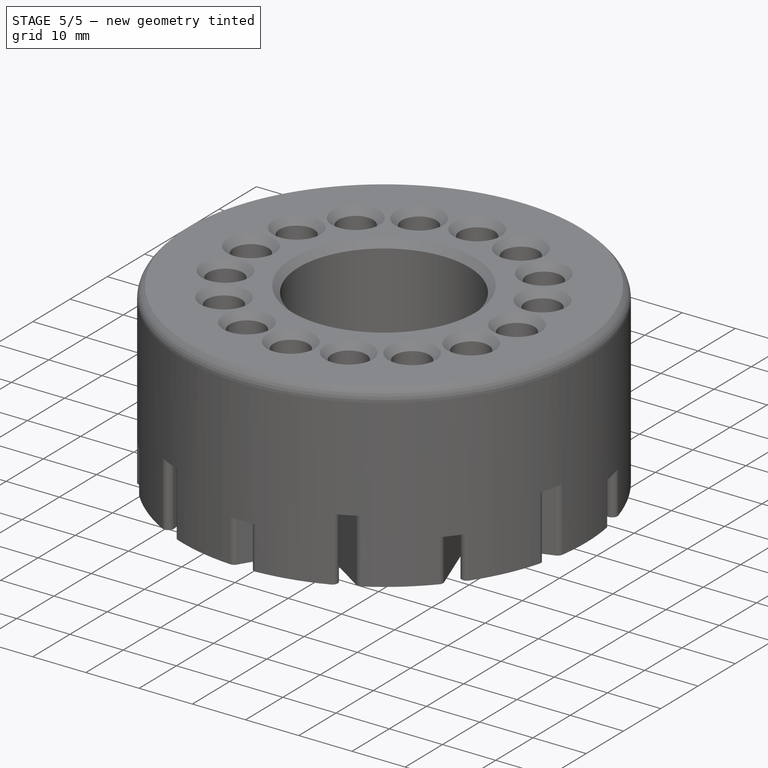
[diagram: stage 5 of 5 — iso view after this stage's code; geometry added in this stage tinted green]
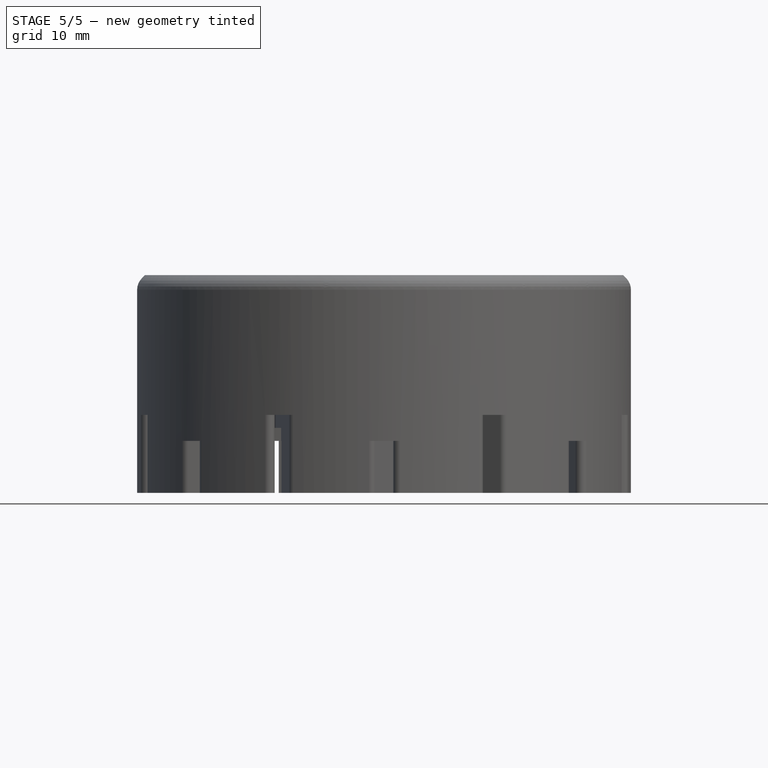
[diagram: stage 5 of 5 — front view after this stage's code; geometry added in this stage tinted green]
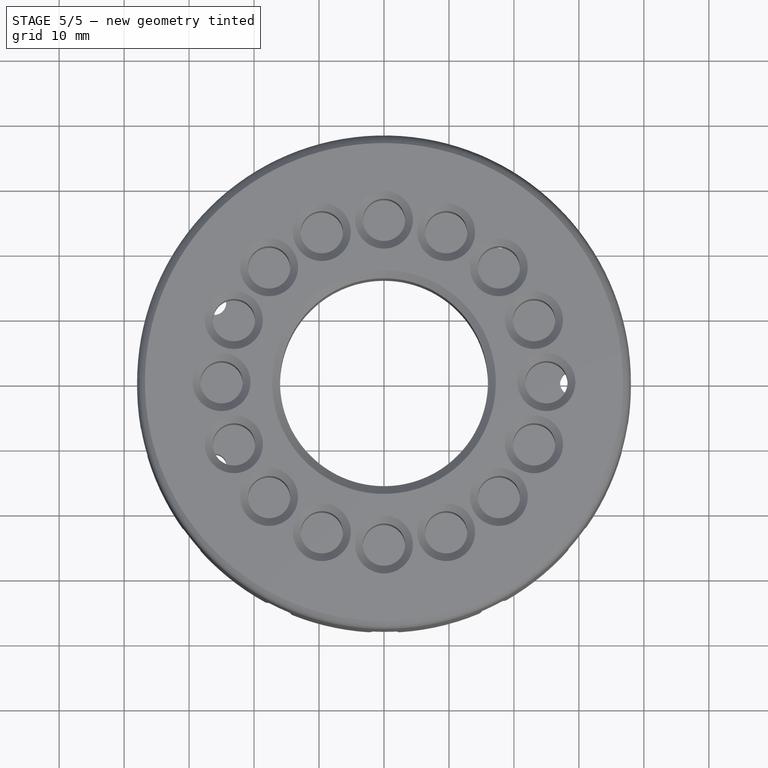
[diagram: stage 5 of 5 — top view after this stage's code; geometry added in this stage tinted green]
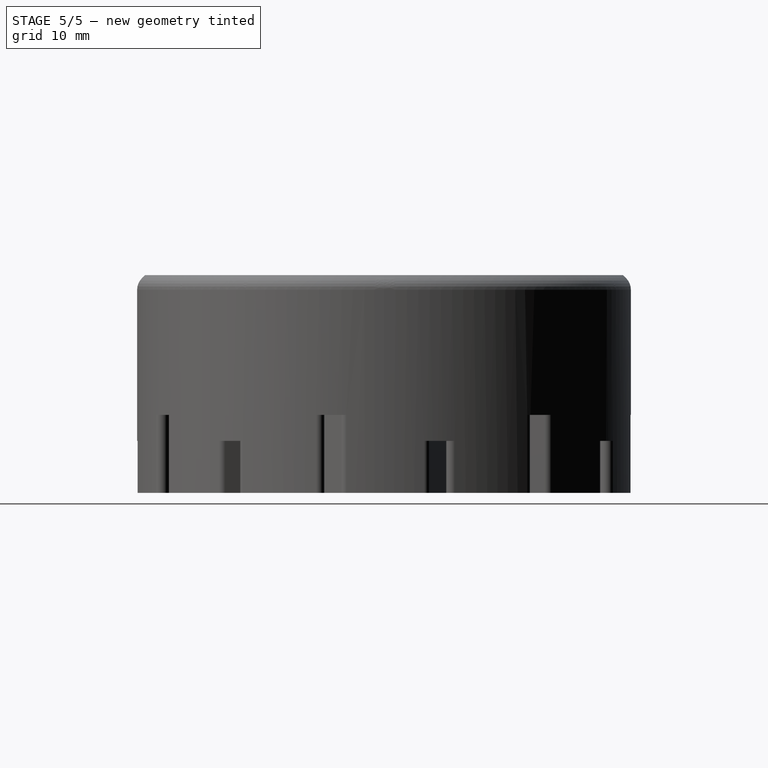
[diagram: stage 5 of 5 — right view after this stage's code; geometry added in this stage tinted green]
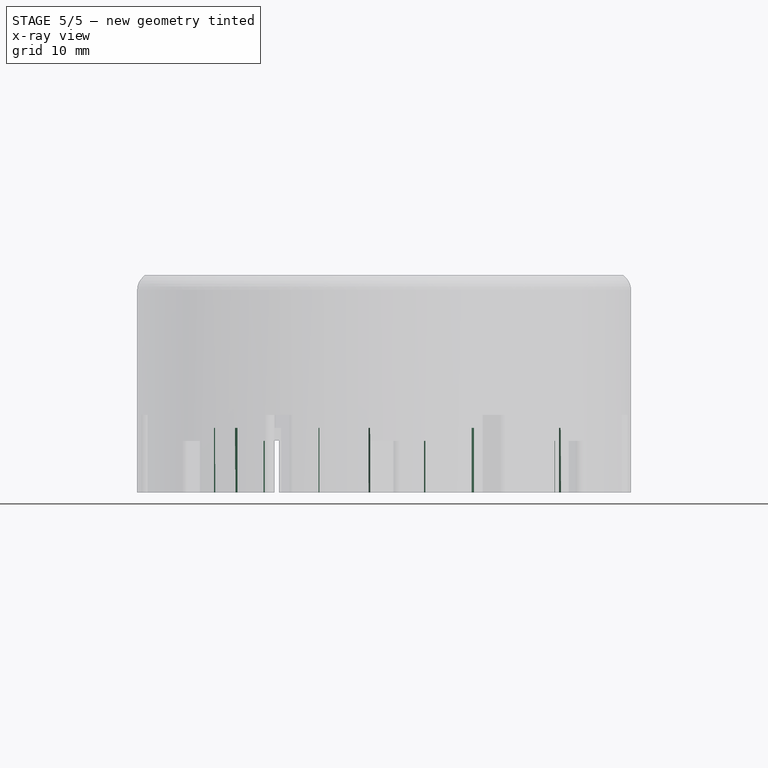
[diagram: stage 5 of 5 — x-ray composite at the front view; earlier geometry ghosted, this stage's added geometry solid]
FEATURE [PartDesign::Fillet] Fillet001
  Base = -> PolarPattern005 [Edge299,Edge363,Edge407,Edge359,Edge355,Edge396,Edge391,Edge417,Edge448,Edge443,Edge422,Edge437,Edge433,Edge411]
  Radius = 1
FEATURE [PartDesign::Fillet] Fillet002
  Base = -> Fillet001 [Edge468,Edge438,Edge413,Edge475,Edge445,Edge109,Edge399]
  Radius = 1
FEATURE [PartDesign::Fillet] Fillet003
  Base = -> Fillet002 [Edge188,Edge192,Edge172,Edge168,Edge152,Edge148,Edge133,Edge35,Edge131,Edge141,Edge157,Edge161,Edge177,Edge181]
  Radius = 1
FEATURE [PartDesign::Fillet] Fillet004
  Base = -> Fillet003 [Edge48]
  Radius = 2.5
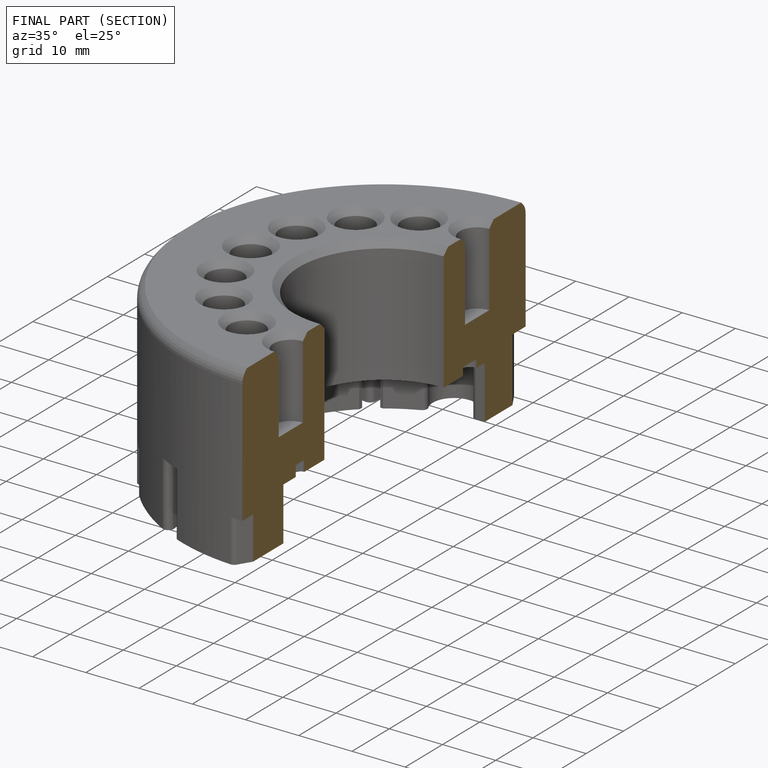
[diagram: finished part — half-section view (interior)]
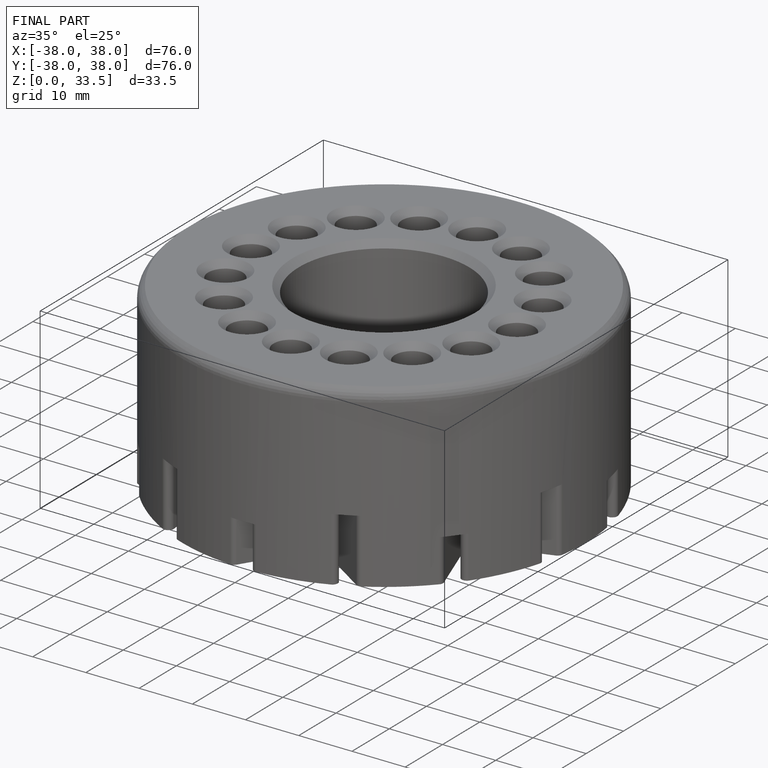
[diagram: finished part — iso view with bounding-box wireframe]
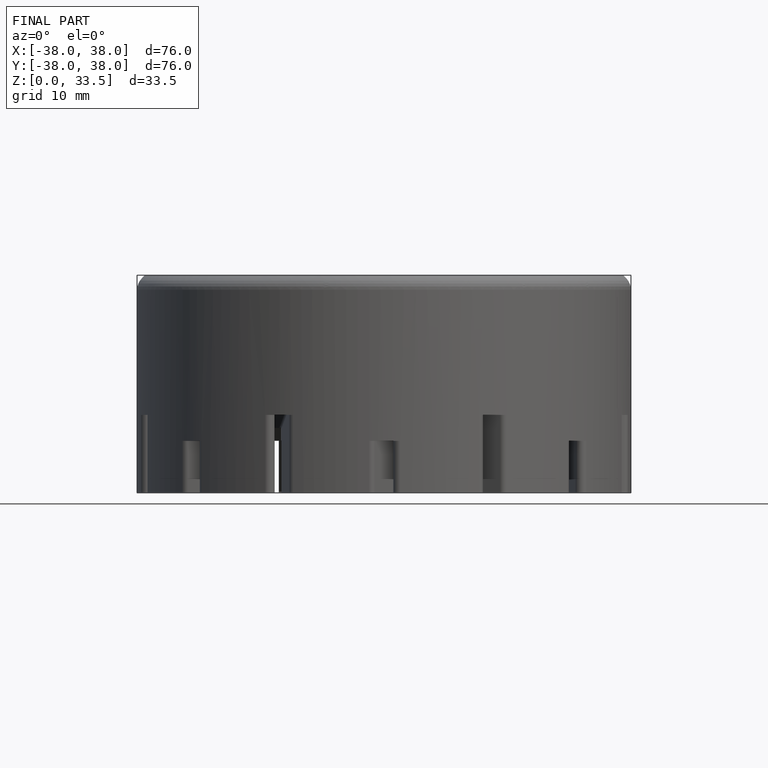
[diagram: finished part — front view with bounding-box wireframe]
